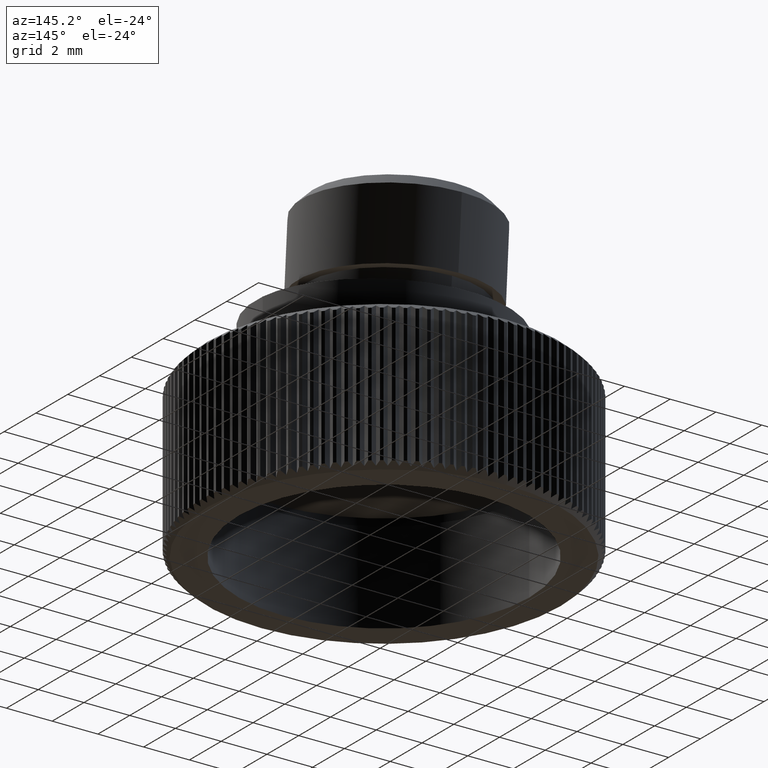
[diagram: clean part render]
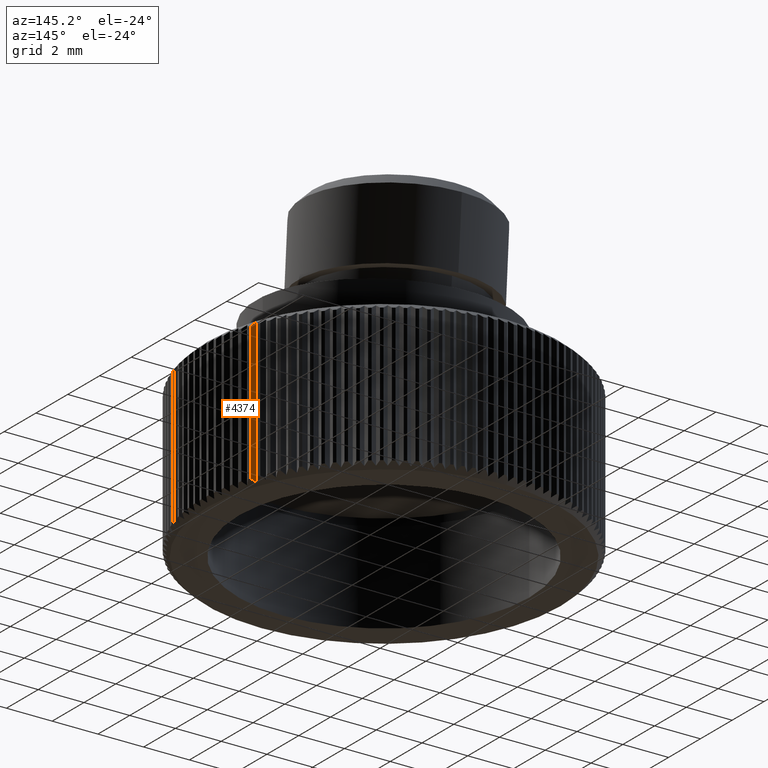
[diagram: same view with one face highlighted and labeled with its STEP entity id]
A machine part, auxiliary view. The second image highlights one B-rep face of the part: STEP entity #4374.
In plain terms, the highlighted planar face has unit normal (-0.4347, -0.9006, 0).
Its self-contained STEP definition (entity closure, byte-faithful):
#567 = DIRECTION ( 'NONE',  ( 0.9005523711034656431, -0.4347475438687675720, 0.000000000000000000 ) ) ;
#1029 = ORIENTED_EDGE ( 'NONE', *, *, #4478, .F. ) ;
#1209 = LINE ( 'NONE', #4499, #5755 ) ;
#1260 = VECTOR ( 'NONE', #7178, 1000.000000000000000 ) ;
#1350 = FACE_OUTER_BOUND ( 'NONE', #12371, .T. ) ;
#2050 = VERTEX_POINT ( 'NONE', #3516 ) ;
#2318 = EDGE_CURVE ( 'NONE', #7685, #3803, #2885, .T. ) ;
#2614 = VERTEX_POINT ( 'NONE', #13536 ) ;
#2659 = CARTESIAN_POINT ( 'NONE',  ( 7.364757149300287686, 2.569115428356645303, 0.1000001251531958957 ) ) ;
#2885 = LINE ( 'NONE', #12769, #1260 ) ;
#3516 = CARTESIAN_POINT ( 'NONE',  ( 7.554023923162249687, 2.477745459956652407, 0.2499999997511558880 ) ) ;
#3651 = EDGE_CURVE ( 'NONE', #2614, #2050, #1209, .T. ) ;
#3803 = VERTEX_POINT ( 'NONE', #4123 ) ;
#4123 = CARTESIAN_POINT ( 'NONE',  ( 7.364757149300287686, 2.569115428356645303, 0.1000001251531958957 ) ) ;
#4374 = ADVANCED_FACE ( 'NONE', ( #1350 ), #11037, .F. ) ;
#4478 = EDGE_CURVE ( 'NONE', #2614, #7685, #7187, .T. ) ;
#4499 = CARTESIAN_POINT ( 'NONE',  ( 7.554023923034018040, 2.477745461146030781, 3.250000000000000444 ) ) ;
#4554 = CARTESIAN_POINT ( 'NONE',  ( 7.554023923162249687, 2.477745459956652407, 0.2499999997511558880 ) ) ;
#4768 = CARTESIAN_POINT ( 'NONE',  ( 7.490463146054841204, 2.508429840125295129, 0.1991683585864194028 ) ) ;
#4989 = CARTESIAN_POINT ( 'NONE',  ( 7.427376673942075236, 2.538885247365207043, 6.350831570546398019 ) ) ;
#5099 = AXIS2_PLACEMENT_3D ( 'NONE', #12165, #12236, #567 ) ;
#5373 = ORIENTED_EDGE ( 'NONE', *, *, #7881, .F. ) ;
#5755 = VECTOR ( 'NONE', #7797, 1000.000000000000000 ) ;
#6043 = CARTESIAN_POINT ( 'NONE',  ( 7.490463182100070227, 2.508429822724224323, 6.300831612587026953 ) ) ;
#6117 = ORIENTED_EDGE ( 'NONE', *, *, #3651, .T. ) ;
#6266 = B_SPLINE_CURVE_WITH_KNOTS ( 'NONE', 3,
 ( #2659, #7867, #4768, #4554 ),
 .UNSPECIFIED., .F., .F.,
 ( 4, 4 ),
 ( 2.803560810930717969E-07, 1.000000000000000000 ),
 .UNSPECIFIED. ) ;
#7178 = DIRECTION ( 'NONE',  ( -0.000000000000000000, -0.000000000000000000, -1.000000000000000000 ) ) ;
#7187 = B_SPLINE_CURVE_WITH_KNOTS ( 'NONE', 3,
 ( #7295, #6043, #4989, #11591 ),
 .UNSPECIFIED., .F., .F.,
 ( 4, 4 ),
 ( 0.000000000000000000, 0.9999991525455270702 ),
 .UNSPECIFIED. ) ;
#7295 = CARTESIAN_POINT ( 'NONE',  ( 7.554023923162249687, 2.477745459956652407, 6.250000000248844501 ) ) ;
#7685 = VERTEX_POINT ( 'NONE', #8602 ) ;
#7797 = DIRECTION ( 'NONE',  ( 0.000000000000000000, 0.000000000000000000, -1.000000000000000000 ) ) ;
#7867 = CARTESIAN_POINT ( 'NONE',  ( 7.427376602389535343, 2.538885281907534708, 0.1491683727437587703 ) ) ;
#7881 = EDGE_CURVE ( 'NONE', #3803, #2050, #6266, .T. ) ;
#8602 = CARTESIAN_POINT ( 'NONE',  ( 7.364757232090947348, 2.569115192454700214, 6.399999874375803088 ) ) ;
#11037 = PLANE ( 'NONE',  #5099 ) ;
#11591 = CARTESIAN_POINT ( 'NONE',  ( 7.364757232090947348, 2.569115192454700214, 6.399999874375803088 ) ) ;
#12165 = CARTESIAN_POINT ( 'NONE',  ( 7.364757071999998850, 2.569115269000000090, 0.06220000000000000528 ) ) ;
#12236 = DIRECTION ( 'NONE',  ( -0.4347475438687675720, -0.9005523711034656431, 0.000000000000000000 ) ) ;
#12237 = ORIENTED_EDGE ( 'NONE', *, *, #2318, .F. ) ;
#12371 = EDGE_LOOP ( 'NONE', ( #12237, #1029, #6117, #5373 ) ) ;
#12769 = CARTESIAN_POINT ( 'NONE',  ( 7.364757071999998850, 2.569115269000000090, 3.250000000000000444 ) ) ;
#13536 = CARTESIAN_POINT ( 'NONE',  ( 7.554023923162249687, 2.477745459956652407, 6.250000000248844501 ) ) ;